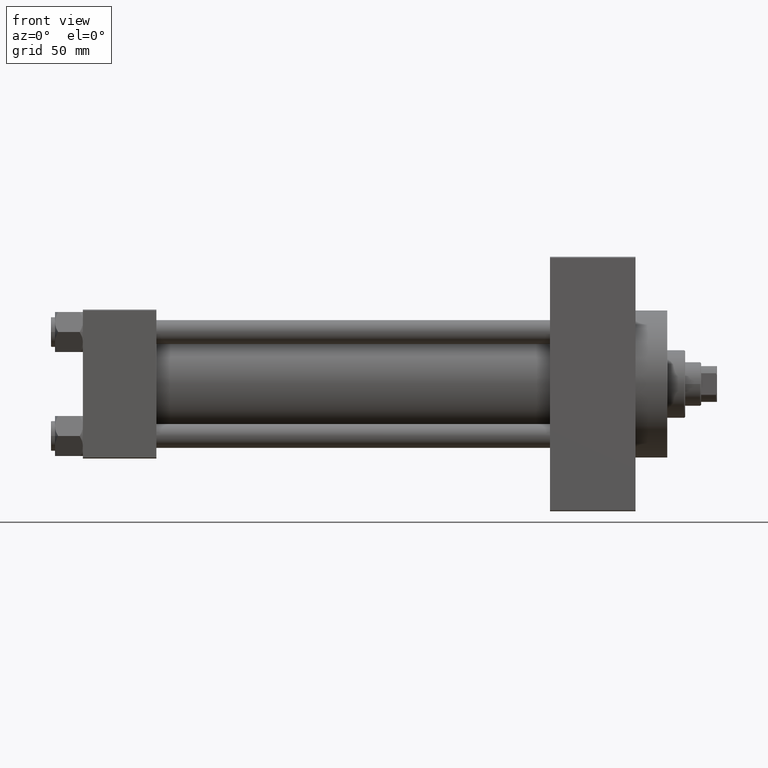
[diagram: clean part render]
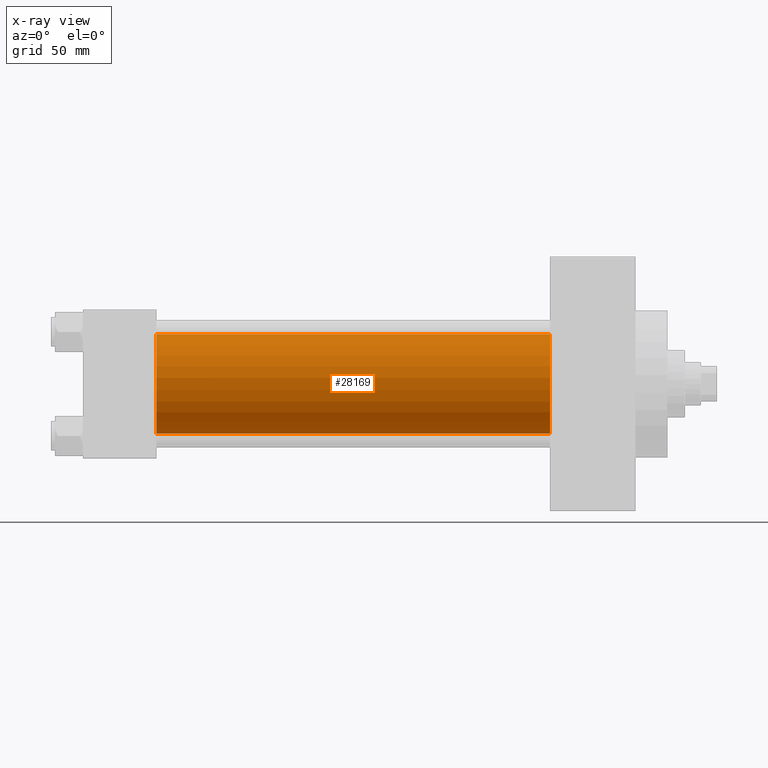
[diagram: x-ray — body ghosted, one internal face saturated and labeled with its STEP entity id]
A machine part, front view, then the same camera in x-ray: the body is ghosted and one INTERNAL B-rep face — a face not visible from any outside direction — is saturated and labeled: STEP entity #28169.
In plain terms, the highlighted cylindrical surface (partial cylindrical patch) has radius 25 mm, axis along (-1, -0, -0).
Its self-contained STEP definition (entity closure, byte-faithful):
#335 = EDGE_CURVE ( 'NONE', #25966, #42628, #5892, .T. ) ;
#393 = VECTOR ( 'NONE', #11834, 1000.000000000000000 ) ;
#3225 = CIRCLE ( 'NONE', #4793, 25.00000000000000000 ) ;
#4249 = CARTESIAN_POINT ( 'NONE',  ( 37.00000000000000000, 4.595317839031724996E-16, -25.00000000000000000 ) ) ;
#4793 = AXIS2_PLACEMENT_3D ( 'NONE', #18955, #11009, #34163 ) ;
#5552 = EDGE_LOOP ( 'NONE', ( #31799, #12427, #21865, #9374 ) ) ;
#5892 = LINE ( 'NONE', #44736, #28041 ) ;
#6744 = CIRCLE ( 'NONE', #47336, 25.00000000000000000 ) ;
#9374 = ORIENTED_EDGE ( 'NONE', *, *, #335, .F. ) ;
#11009 = DIRECTION ( 'NONE',  ( 1.000000000000000000, 0.000000000000000000, 0.000000000000000000 ) ) ;
#11834 = DIRECTION ( 'NONE',  ( -1.000000000000000000, -0.000000000000000000, -0.000000000000000000 ) ) ;
#12427 = ORIENTED_EDGE ( 'NONE', *, *, #30848, .T. ) ;
#13593 = DIRECTION ( 'NONE',  ( -1.000000000000000000, -0.000000000000000000, -0.000000000000000000 ) ) ;
#14513 = CARTESIAN_POINT ( 'NONE',  ( 235.0000000000000284, -2.602085213965210642E-15, 0.000000000000000000 ) ) ;
#17067 = CARTESIAN_POINT ( 'NONE',  ( 37.00000000000000000, -2.602085213965210642E-15, 0.000000000000000000 ) ) ;
#18955 = CARTESIAN_POINT ( 'NONE',  ( 235.0000000000000284, -2.602085213965210642E-15, 0.000000000000000000 ) ) ;
#19902 = CARTESIAN_POINT ( 'NONE',  ( 235.0000000000000284, 4.595317839031724996E-16, -25.00000000000000000 ) ) ;
#20703 = EDGE_CURVE ( 'NONE', #25966, #48910, #3225, .T. ) ;
#21502 = FACE_OUTER_BOUND ( 'NONE', #5552, .T. ) ;
#21865 = ORIENTED_EDGE ( 'NONE', *, *, #34220, .F. ) ;
#22719 = DIRECTION ( 'NONE',  ( 0.000000000000000000, 0.000000000000000000, 1.000000000000000000 ) ) ;
#25296 = CARTESIAN_POINT ( 'NONE',  ( 37.00000000000000000, -2.602085213965210642E-15, 25.00000000000000000 ) ) ;
#25966 = VERTEX_POINT ( 'NONE', #45177 ) ;
#26042 = LINE ( 'NONE', #41262, #393 ) ;
#28041 = VECTOR ( 'NONE', #13593, 1000.000000000000000 ) ;
#28169 = ADVANCED_FACE ( 'NONE', ( #21502 ), #36708, .F. ) ;
#30848 = EDGE_CURVE ( 'NONE', #48910, #47648, #26042, .T. ) ;
#31799 = ORIENTED_EDGE ( 'NONE', *, *, #20703, .T. ) ;
#32272 = DIRECTION ( 'NONE',  ( 1.000000000000000000, 0.000000000000000000, 0.000000000000000000 ) ) ;
#33005 = DIRECTION ( 'NONE',  ( 0.000000000000000000, 0.000000000000000000, -1.000000000000000000 ) ) ;
#34163 = DIRECTION ( 'NONE',  ( 0.000000000000000000, 0.000000000000000000, -1.000000000000000000 ) ) ;
#34196 = DIRECTION ( 'NONE',  ( -1.000000000000000000, -0.000000000000000000, -0.000000000000000000 ) ) ;
#34220 = EDGE_CURVE ( 'NONE', #42628, #47648, #6744, .T. ) ;
#36708 = CYLINDRICAL_SURFACE ( 'NONE', #39280, 25.00000000000000000 ) ;
#39280 = AXIS2_PLACEMENT_3D ( 'NONE', #14513, #34196, #22719 ) ;
#41262 = CARTESIAN_POINT ( 'NONE',  ( 235.0000000000000284, 4.595317839031724996E-16, -25.00000000000000000 ) ) ;
#42628 = VERTEX_POINT ( 'NONE', #25296 ) ;
#44736 = CARTESIAN_POINT ( 'NONE',  ( 235.0000000000000284, -2.602085213965210642E-15, 25.00000000000000000 ) ) ;
#45177 = CARTESIAN_POINT ( 'NONE',  ( 235.0000000000000284, -2.602085213965210642E-15, 25.00000000000000000 ) ) ;
#47336 = AXIS2_PLACEMENT_3D ( 'NONE', #17067, #32272, #33005 ) ;
#47648 = VERTEX_POINT ( 'NONE', #4249 ) ;
#48910 = VERTEX_POINT ( 'NONE', #19902 ) ;